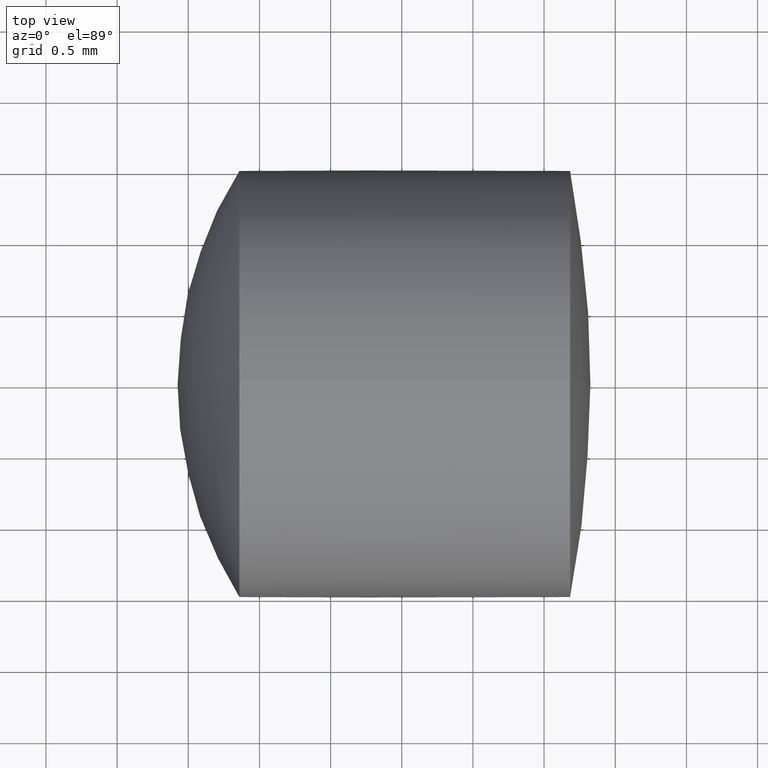
[diagram: clean part render]
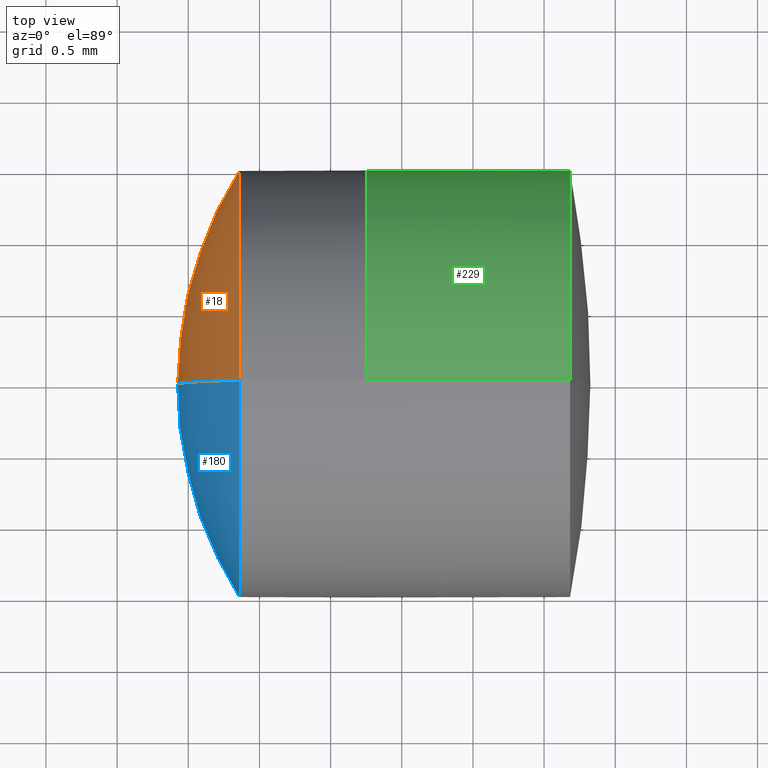
[diagram: same view with three faces highlighted in distinct colors, each labeled with its STEP entity id]
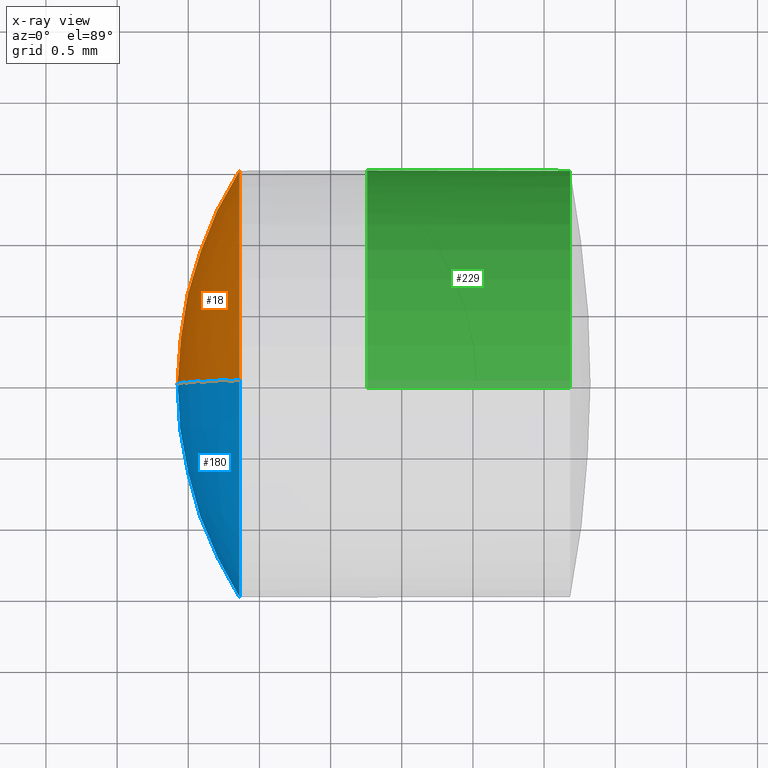
[diagram: x-ray of the same camera — body ghosted, the three highlighted faces saturated]
A machine part, top view with three faces highlighted in distinct colors.
The next image is the same camera in x-ray (body ghosted, the three faces saturated) — at least one of them is partly hidden behind the body in this view.
Their STEP definitions:

[orange] entity #18 — the highlighted spherical surface has radius 2.81 mm.
#18 = ADVANCED_FACE ( 'NONE', ( #214 ), #78, .T. ) ;
#36 = CARTESIAN_POINT ( 'NONE',  ( 2.735212435233160800, 0.0000000000000000000, -7.764961720386270900E-019 ) ) ;
#39 = ORIENTED_EDGE ( 'NONE', *, *, #205, .T. ) ;
#40 = AXIS2_PLACEMENT_3D ( 'NONE', #285, #96, #258 ) ;
#47 = ORIENTED_EDGE ( 'NONE', *, *, #273, .F. ) ;
#57 = DIRECTION ( 'NONE',  ( 0.0000000000000000000, -1.224646799147353200E-016, 1.000000000000000000 ) ) ;
#61 = EDGE_LOOP ( 'NONE', ( #39, #320, #47 ) ) ;
#73 = DIRECTION ( 'NONE',  ( -1.000000000000000000, -0.0000000000000000000, -0.0000000000000000000 ) ) ;
#76 = CARTESIAN_POINT ( 'NONE',  ( 2.735212435233160800, 0.0000000000000000000, -7.764961720386270900E-019 ) ) ;
#78 = SPHERICAL_SURFACE ( 'NONE', #231, 2.810000000000000100 ) ;
#83 = AXIS2_PLACEMENT_3D ( 'NONE', #264, #73, #235 ) ;
#86 = CARTESIAN_POINT ( 'NONE',  ( -0.07478756476683896800, 0.0000000000000000000, 1.712863791081644800E-016 ) ) ;
#96 = DIRECTION ( 'NONE',  ( 0.0000000000000000000, -1.000000000000000000, 0.0000000000000000000 ) ) ;
#130 = VERTEX_POINT ( 'NONE', #166 ) ;
#143 = EDGE_CURVE ( 'NONE', #191, #312, #251, .T. ) ;
#166 = CARTESIAN_POINT ( 'NONE',  ( 0.3590600832153031400, 0.0000000000000000000, 1.500000000000000200 ) ) ;
#174 = DIRECTION ( 'NONE',  ( 0.0000000000000000000, 0.0000000000000000000, 1.000000000000000000 ) ) ;
#191 = VERTEX_POINT ( 'NONE', #265 ) ;
#199 = DIRECTION ( 'NONE',  ( 0.0000000000000000000, 1.000000000000000000, 0.0000000000000000000 ) ) ;
#205 = EDGE_CURVE ( 'NONE', #130, #191, #340, .T. ) ;
#214 = FACE_OUTER_BOUND ( 'NONE', #61, .T. ) ;
#231 = AXIS2_PLACEMENT_3D ( 'NONE', #36, #199, #174 ) ;
#235 = DIRECTION ( 'NONE',  ( 0.0000000000000000000, 0.0000000000000000000, 1.000000000000000000 ) ) ;
#239 = DIRECTION ( 'NONE',  ( -0.0000000000000000000, 1.000000000000000000, 1.224646799147353200E-016 ) ) ;
#251 = CIRCLE ( 'NONE', #293, 2.810000000000000100 ) ;
#258 = DIRECTION ( 'NONE',  ( 0.0000000000000000000, 0.0000000000000000000, -1.000000000000000000 ) ) ;
#264 = CARTESIAN_POINT ( 'NONE',  ( 0.3590600832153031400, 0.0000000000000000000, 0.0000000000000000000 ) ) ;
#265 = CARTESIAN_POINT ( 'NONE',  ( 0.3590600832153031400, 1.836970198721030200E-016, -1.500000000000000200 ) ) ;
#273 = EDGE_CURVE ( 'NONE', #130, #312, #279, .T. ) ;
#279 = CIRCLE ( 'NONE', #40, 2.810000000000000100 ) ;
#285 = CARTESIAN_POINT ( 'NONE',  ( 2.735212435233160800, 0.0000000000000000000, -7.764961720386270900E-019 ) ) ;
#293 = AXIS2_PLACEMENT_3D ( 'NONE', #76, #239, #57 ) ;
#312 = VERTEX_POINT ( 'NONE', #86 ) ;
#320 = ORIENTED_EDGE ( 'NONE', *, *, #143, .T. ) ;
#340 = CIRCLE ( 'NONE', #83, 1.500000000000000000 ) ;

[blue] entity #180 — the highlighted spherical surface has radius 2.81 mm.
#5 = CARTESIAN_POINT ( 'NONE',  ( 0.3590600832153031400, 0.0000000000000000000, 0.0000000000000000000 ) ) ;
#35 = ORIENTED_EDGE ( 'NONE', *, *, #343, .T. ) ;
#40 = AXIS2_PLACEMENT_3D ( 'NONE', #285, #96, #258 ) ;
#57 = DIRECTION ( 'NONE',  ( 0.0000000000000000000, -1.224646799147353200E-016, 1.000000000000000000 ) ) ;
#76 = CARTESIAN_POINT ( 'NONE',  ( 2.735212435233160800, 0.0000000000000000000, -7.764961720386270900E-019 ) ) ;
#86 = CARTESIAN_POINT ( 'NONE',  ( -0.07478756476683896800, 0.0000000000000000000, 1.712863791081644800E-016 ) ) ;
#96 = DIRECTION ( 'NONE',  ( 0.0000000000000000000, -1.000000000000000000, 0.0000000000000000000 ) ) ;
#105 = CARTESIAN_POINT ( 'NONE',  ( 2.735212435233160800, 0.0000000000000000000, -7.764961720386270900E-019 ) ) ;
#107 = AXIS2_PLACEMENT_3D ( 'NONE', #105, #212, #325 ) ;
#130 = VERTEX_POINT ( 'NONE', #166 ) ;
#143 = EDGE_CURVE ( 'NONE', #191, #312, #251, .T. ) ;
#156 = CIRCLE ( 'NONE', #337, 1.500000000000000000 ) ;
#166 = CARTESIAN_POINT ( 'NONE',  ( 0.3590600832153031400, 0.0000000000000000000, 1.500000000000000200 ) ) ;
#170 = DIRECTION ( 'NONE',  ( -1.000000000000000000, -0.0000000000000000000, -0.0000000000000000000 ) ) ;
#180 = ADVANCED_FACE ( 'NONE', ( #252 ), #335, .T. ) ;
#191 = VERTEX_POINT ( 'NONE', #265 ) ;
#212 = DIRECTION ( 'NONE',  ( 0.0000000000000000000, 1.000000000000000000, 0.0000000000000000000 ) ) ;
#228 = EDGE_LOOP ( 'NONE', ( #244, #35, #338 ) ) ;
#239 = DIRECTION ( 'NONE',  ( -0.0000000000000000000, 1.000000000000000000, 1.224646799147353200E-016 ) ) ;
#244 = ORIENTED_EDGE ( 'NONE', *, *, #143, .F. ) ;
#251 = CIRCLE ( 'NONE', #293, 2.810000000000000100 ) ;
#252 = FACE_OUTER_BOUND ( 'NONE', #228, .T. ) ;
#258 = DIRECTION ( 'NONE',  ( 0.0000000000000000000, 0.0000000000000000000, -1.000000000000000000 ) ) ;
#265 = CARTESIAN_POINT ( 'NONE',  ( 0.3590600832153031400, 1.836970198721030200E-016, -1.500000000000000200 ) ) ;
#273 = EDGE_CURVE ( 'NONE', #130, #312, #279, .T. ) ;
#279 = CIRCLE ( 'NONE', #40, 2.810000000000000100 ) ;
#285 = CARTESIAN_POINT ( 'NONE',  ( 2.735212435233160800, 0.0000000000000000000, -7.764961720386270900E-019 ) ) ;
#293 = AXIS2_PLACEMENT_3D ( 'NONE', #76, #239, #57 ) ;
#312 = VERTEX_POINT ( 'NONE', #86 ) ;
#325 = DIRECTION ( 'NONE',  ( 0.0000000000000000000, 0.0000000000000000000, 1.000000000000000000 ) ) ;
#332 = DIRECTION ( 'NONE',  ( 0.0000000000000000000, 0.0000000000000000000, 1.000000000000000000 ) ) ;
#335 = SPHERICAL_SURFACE ( 'NONE', #107, 2.810000000000000100 ) ;
#337 = AXIS2_PLACEMENT_3D ( 'NONE', #5, #170, #332 ) ;
#338 = ORIENTED_EDGE ( 'NONE', *, *, #273, .T. ) ;
#343 = EDGE_CURVE ( 'NONE', #191, #130, #156, .T. ) ;

[green] entity #229 — the highlighted cylindrical surface (partial cylindrical patch) has radius 1.5 mm, axis along (-1, -0, -0).
#6 = AXIS2_PLACEMENT_3D ( 'NONE', #169, #331, #142 ) ;
#12 = VERTEX_POINT ( 'NONE', #276 ) ;
#22 = CARTESIAN_POINT ( 'NONE',  ( 1.256612268473860800, 0.0000000000000000000, -1.500000000000000000 ) ) ;
#28 = VERTEX_POINT ( 'NONE', #146 ) ;
#29 = CARTESIAN_POINT ( 'NONE',  ( -0.5519199926577972300, 0.0000000000000000000, 1.500000000000000000 ) ) ;
#41 = CYLINDRICAL_SURFACE ( 'NONE', #120, 1.500000000000000000 ) ;
#42 = ORIENTED_EDGE ( 'NONE', *, *, #129, .F. ) ;
#44 = ORIENTED_EDGE ( 'NONE', *, *, #150, .T. ) ;
#52 = CARTESIAN_POINT ( 'NONE',  ( -0.5519199926577972300, 0.0000000000000000000, 0.0000000000000000000 ) ) ;
#54 = DIRECTION ( 'NONE',  ( 0.0000000000000000000, 0.0000000000000000000, 1.000000000000000000 ) ) ;
#74 = ORIENTED_EDGE ( 'NONE', *, *, #168, .T. ) ;
#75 = CARTESIAN_POINT ( 'NONE',  ( 2.682603304314750600, 0.0000000000000000000, 0.0000000000000000000 ) ) ;
#80 = VERTEX_POINT ( 'NONE', #303 ) ;
#109 = EDGE_CURVE ( 'NONE', #12, #249, #318, .T. ) ;
#110 = DIRECTION ( 'NONE',  ( -1.000000000000000000, -0.0000000000000000000, -0.0000000000000000000 ) ) ;
#120 = AXIS2_PLACEMENT_3D ( 'NONE', #52, #209, #263 ) ;
#121 = ORIENTED_EDGE ( 'NONE', *, *, #109, .F. ) ;
#129 = EDGE_CURVE ( 'NONE', #80, #12, #339, .T. ) ;
#142 = DIRECTION ( 'NONE',  ( 0.0000000000000000000, 0.0000000000000000000, 1.000000000000000000 ) ) ;
#146 = CARTESIAN_POINT ( 'NONE',  ( 2.682603304314751000, 0.0000000000000000000, -1.500000000000000000 ) ) ;
#150 = EDGE_CURVE ( 'NONE', #28, #249, #310, .T. ) ;
#168 = EDGE_CURVE ( 'NONE', #80, #28, #319, .T. ) ;
#169 = CARTESIAN_POINT ( 'NONE',  ( 1.256612268473860800, 0.0000000000000000000, 0.0000000000000000000 ) ) ;
#203 = FACE_OUTER_BOUND ( 'NONE', #253, .T. ) ;
#209 = DIRECTION ( 'NONE',  ( -1.000000000000000000, -0.0000000000000000000, -0.0000000000000000000 ) ) ;
#224 = VECTOR ( 'NONE', #110, 1000.000000000000000 ) ;
#229 = ADVANCED_FACE ( 'NONE', ( #203 ), #41, .T. ) ;
#233 = VECTOR ( 'NONE', #267, 1000.000000000000000 ) ;
#237 = DIRECTION ( 'NONE',  ( -1.000000000000000000, -0.0000000000000000000, -0.0000000000000000000 ) ) ;
#249 = VERTEX_POINT ( 'NONE', #22 ) ;
#250 = AXIS2_PLACEMENT_3D ( 'NONE', #75, #237, #54 ) ;
#253 = EDGE_LOOP ( 'NONE', ( #74, #44, #121, #42 ) ) ;
#263 = DIRECTION ( 'NONE',  ( 0.0000000000000000000, 0.0000000000000000000, 1.000000000000000000 ) ) ;
#267 = DIRECTION ( 'NONE',  ( -1.000000000000000000, -0.0000000000000000000, -0.0000000000000000000 ) ) ;
#276 = CARTESIAN_POINT ( 'NONE',  ( 1.256612268473860800, -1.836970198721030200E-016, 1.500000000000000000 ) ) ;
#303 = CARTESIAN_POINT ( 'NONE',  ( 2.682603304314751000, -1.836970198721029900E-016, 1.500000000000000000 ) ) ;
#310 = LINE ( 'NONE', #329, #233 ) ;
#318 = CIRCLE ( 'NONE', #6, 1.500000000000000000 ) ;
#319 = CIRCLE ( 'NONE', #250, 1.500000000000000000 ) ;
#329 = CARTESIAN_POINT ( 'NONE',  ( -0.5519199926577972300, 1.836970198721029900E-016, -1.500000000000000000 ) ) ;
#331 = DIRECTION ( 'NONE',  ( -1.000000000000000000, -0.0000000000000000000, -0.0000000000000000000 ) ) ;
#339 = LINE ( 'NONE', #29, #224 ) ;